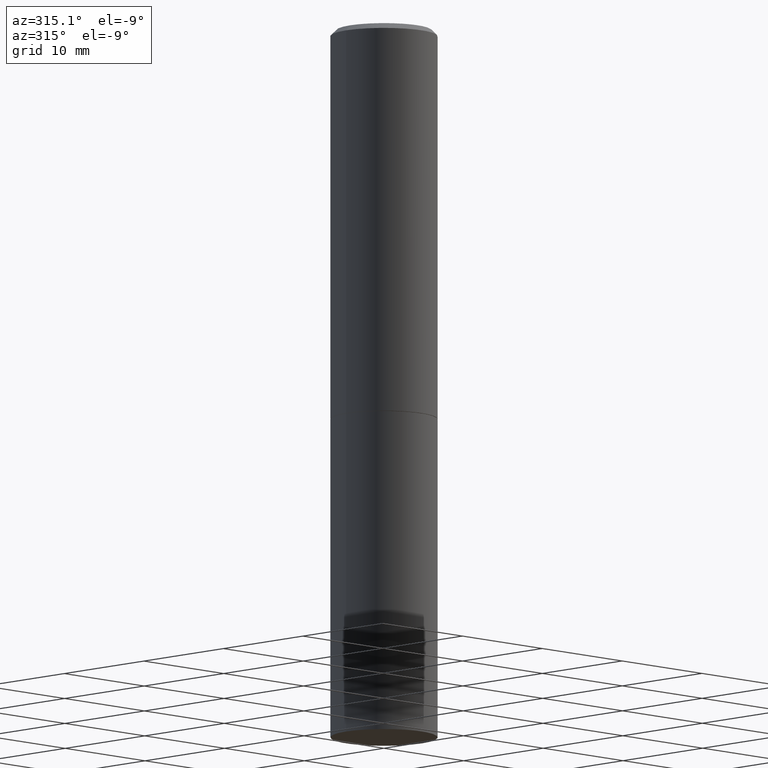
[diagram: clean part render]
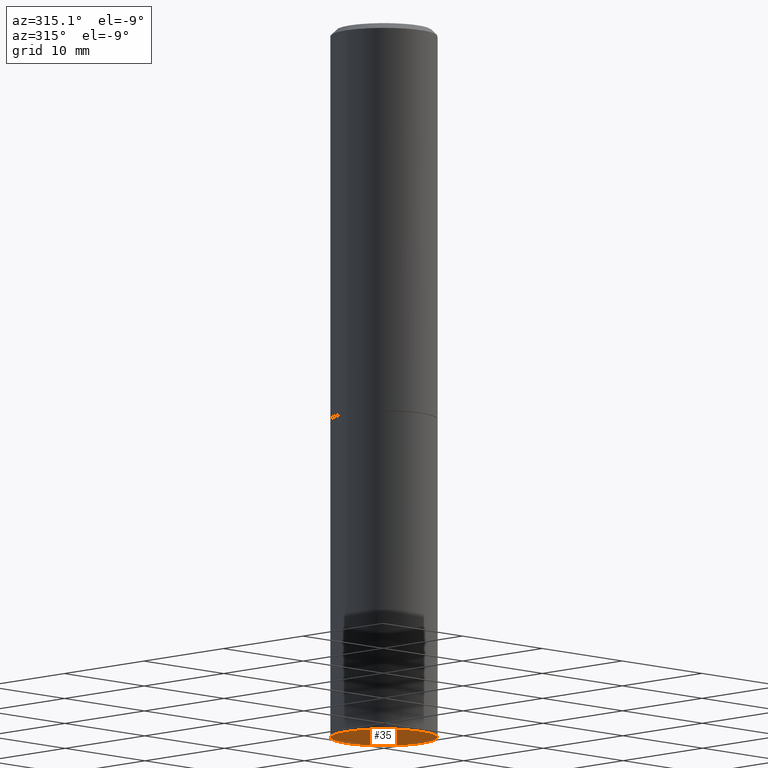
[diagram: same view with one face highlighted and labeled with its STEP entity id]
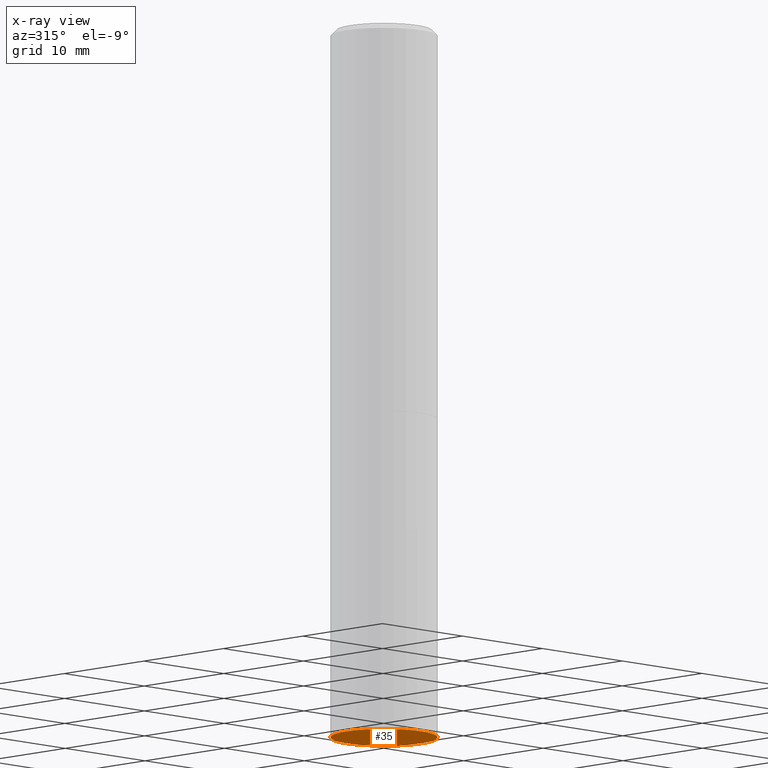
[diagram: x-ray of the same camera — body ghosted, the highlighted face saturated]
A machine part, auxiliary view. The second image highlights one B-rep face of the part: STEP entity #35.
The next image is the same camera in x-ray: the body ghosted, the highlighted face saturated — about 0% of this face is hidden behind the body in this view.
In plain terms, the highlighted planar face has unit normal (0, -0, -1).
Its self-contained STEP definition (entity closure, byte-faithful):
#15 = ORIENTED_EDGE ( 'NONE', *, *, #116, .F. ) ;
#31 = PLANE ( 'NONE',  #265 ) ;
#35 = ADVANCED_FACE ( 'NONE', ( #305 ), #31, .T. ) ;
#50 = CARTESIAN_POINT ( 'NONE',  ( 6.113672015462842613E-29, -8.728703347107864943E-15, -2.500000000000000000 ) ) ;
#59 = VERTEX_POINT ( 'NONE', #210 ) ;
#63 = DIRECTION ( 'NONE',  ( 1.000000000000000000, -6.982962677686266711E-15, 0.000000000000000000 ) ) ;
#65 = CIRCLE ( 'NONE', #133, 0.1875000000000000278 ) ;
#72 = DIRECTION ( 'NONE',  ( -2.445468806185136597E-29, 3.491481338843145583E-15, 1.000000000000000000 ) ) ;
#107 = AXIS2_PLACEMENT_3D ( 'NONE', #198, #317, #63 ) ;
#116 = EDGE_CURVE ( 'NONE', #59, #327, #65, .T. ) ;
#122 = DIRECTION ( 'NONE',  ( -1.000000000000000000, 6.982962677686265922E-15, -4.876176775795935793E-29 ) ) ;
#128 = ORIENTED_EDGE ( 'NONE', *, *, #249, .F. ) ;
#133 = AXIS2_PLACEMENT_3D ( 'NONE', #50, #72, #161 ) ;
#139 = EDGE_LOOP ( 'NONE', ( #128, #15 ) ) ;
#161 = DIRECTION ( 'NONE',  ( 1.000000000000000000, -6.982962677686266711E-15, 0.000000000000000000 ) ) ;
#198 = CARTESIAN_POINT ( 'NONE',  ( 6.113672015462842613E-29, -8.728703347107864943E-15, -2.500000000000000000 ) ) ;
#208 = CARTESIAN_POINT ( 'NONE',  ( 1.309305502066236145E-15, 0.1874999999999912847, -2.500000000000000444 ) ) ;
#210 = CARTESIAN_POINT ( 'NONE',  ( -0.1875000000000000278, -5.432477464458407482E-15, -2.500000000000000000 ) ) ;
#248 = CARTESIAN_POINT ( 'NONE',  ( 0.1875000000000000278, -1.003800884917403995E-14, -2.500000000000000000 ) ) ;
#249 = EDGE_CURVE ( 'NONE', #327, #59, #335, .T. ) ;
#260 = DIRECTION ( 'NONE',  ( 2.438088387897960049E-29, -3.491481338843145188E-15, -1.000000000000000000 ) ) ;
#265 = AXIS2_PLACEMENT_3D ( 'NONE', #208, #260, #122 ) ;
#305 = FACE_OUTER_BOUND ( 'NONE', #139, .T. ) ;
#317 = DIRECTION ( 'NONE',  ( -2.445468806185136597E-29, 3.491481338843145583E-15, 1.000000000000000000 ) ) ;
#327 = VERTEX_POINT ( 'NONE', #248 ) ;
#335 = CIRCLE ( 'NONE', #107, 0.1875000000000000278 ) ;